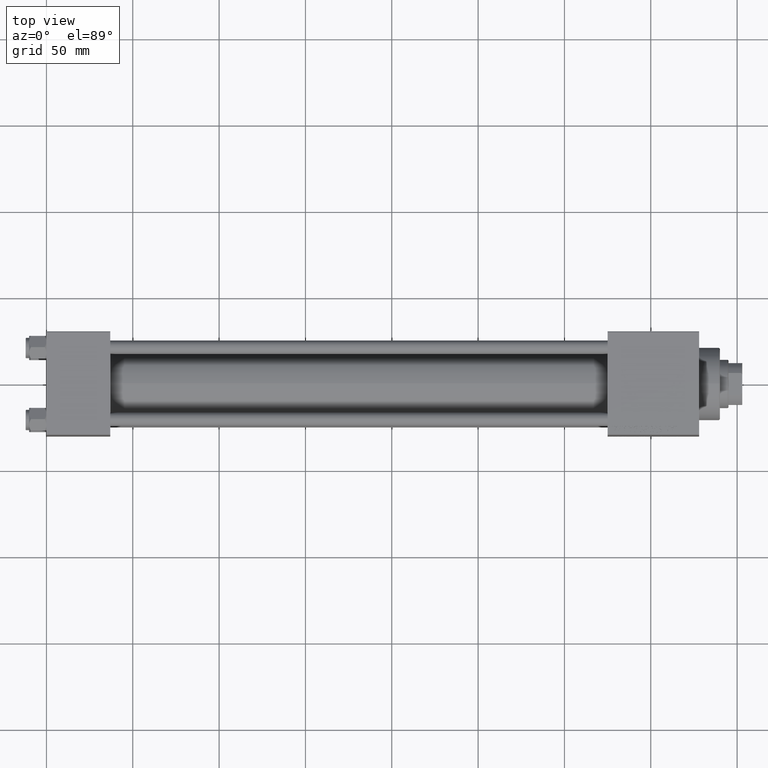
[diagram: clean part render]
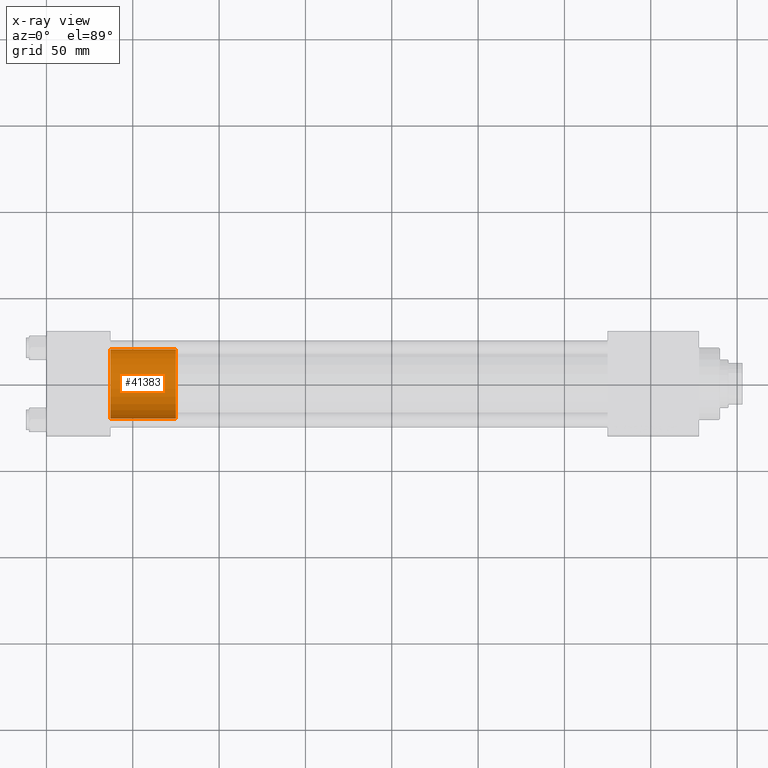
[diagram: x-ray — body ghosted, one internal face saturated and labeled with its STEP entity id]
A machine part, top view, then the same camera in x-ray: the body is ghosted and one INTERNAL B-rep face — a face not visible from any outside direction — is saturated and labeled: STEP entity #41383.
In plain terms, the highlighted cylindrical surface (edge-blend (fillet) strip) has radius 20 mm, axis along (-1, 0, 0).
Its self-contained STEP definition (entity closure, byte-faithful):
#1955 = CARTESIAN_POINT ( 'NONE',  ( -20.00000000000000000, 0.000000000000000000, 38.00000000000000000 ) ) ;
#3616 = CARTESIAN_POINT ( 'NONE',  ( 0.000000000000000000, 0.000000000000000000, 0.000000000000000000 ) ) ;
#5503 = DIRECTION ( 'NONE',  ( -0.000000000000000000, -0.000000000000000000, -1.000000000000000000 ) ) ;
#5640 = AXIS2_PLACEMENT_3D ( 'NONE', #45212, #17258, #44204 ) ;
#6627 = EDGE_CURVE ( 'NONE', #8413, #42660, #38902, .T. ) ;
#7676 = ORIENTED_EDGE ( 'NONE', *, *, #49990, .T. ) ;
#7866 = CARTESIAN_POINT ( 'NONE',  ( -20.00000000000000000, 0.000000000000000000, 0.000000000000000000 ) ) ;
#8036 = AXIS2_PLACEMENT_3D ( 'NONE', #3616, #18823, #8147 ) ;
#8147 = DIRECTION ( 'NONE',  ( 1.000000000000000000, 0.000000000000000000, 0.000000000000000000 ) ) ;
#8413 = VERTEX_POINT ( 'NONE', #47093 ) ;
#11741 = VECTOR ( 'NONE', #5503, 1000.000000000000000 ) ;
#11807 = VECTOR ( 'NONE', #33564, 1000.000000000000000 ) ;
#13893 = VERTEX_POINT ( 'NONE', #7866 ) ;
#15308 = CIRCLE ( 'NONE', #8036, 20.00000000000000000 ) ;
#17258 = DIRECTION ( 'NONE',  ( 0.000000000000000000, 0.000000000000000000, 1.000000000000000000 ) ) ;
#17558 = LINE ( 'NONE', #29501, #11807 ) ;
#17920 = EDGE_LOOP ( 'NONE', ( #19030, #7676, #47900, #43783 ) ) ;
#18823 = DIRECTION ( 'NONE',  ( 0.000000000000000000, 0.000000000000000000, 1.000000000000000000 ) ) ;
#19030 = ORIENTED_EDGE ( 'NONE', *, *, #6627, .F. ) ;
#20435 = CARTESIAN_POINT ( 'NONE',  ( -20.00000000000000000, 0.000000000000000000, 38.00000000000000000 ) ) ;
#20555 = CARTESIAN_POINT ( 'NONE',  ( 0.000000000000000000, 0.000000000000000000, 38.00000000000000000 ) ) ;
#21411 = CARTESIAN_POINT ( 'NONE',  ( 20.00000000000000000, 2.449293598294706513E-15, 0.000000000000000000 ) ) ;
#24870 = FACE_OUTER_BOUND ( 'NONE', #17920, .T. ) ;
#27385 = EDGE_CURVE ( 'NONE', #36353, #13893, #15308, .T. ) ;
#28431 = CYLINDRICAL_SURFACE ( 'NONE', #39944, 20.00000000000000000 ) ;
#29501 = CARTESIAN_POINT ( 'NONE',  ( 20.00000000000000000, 2.449293598294706513E-15, 38.00000000000000000 ) ) ;
#33003 = DIRECTION ( 'NONE',  ( -1.000000000000000000, 0.000000000000000000, 0.000000000000000000 ) ) ;
#33564 = DIRECTION ( 'NONE',  ( -0.000000000000000000, -0.000000000000000000, -1.000000000000000000 ) ) ;
#36353 = VERTEX_POINT ( 'NONE', #21411 ) ;
#38902 = CIRCLE ( 'NONE', #5640, 20.00000000000000000 ) ;
#39944 = AXIS2_PLACEMENT_3D ( 'NONE', #20555, #44190, #33003 ) ;
#41383 = ADVANCED_FACE ( 'NONE', ( #24870 ), #28431, .T. ) ;
#42630 = LINE ( 'NONE', #1955, #11741 ) ;
#42660 = VERTEX_POINT ( 'NONE', #20435 ) ;
#43783 = ORIENTED_EDGE ( 'NONE', *, *, #48477, .F. ) ;
#44190 = DIRECTION ( 'NONE',  ( -0.000000000000000000, -0.000000000000000000, -1.000000000000000000 ) ) ;
#44204 = DIRECTION ( 'NONE',  ( 1.000000000000000000, 0.000000000000000000, 0.000000000000000000 ) ) ;
#45212 = CARTESIAN_POINT ( 'NONE',  ( 0.000000000000000000, 0.000000000000000000, 38.00000000000000000 ) ) ;
#47093 = CARTESIAN_POINT ( 'NONE',  ( 20.00000000000000000, 2.449293598294706513E-15, 38.00000000000000000 ) ) ;
#47900 = ORIENTED_EDGE ( 'NONE', *, *, #27385, .T. ) ;
#48477 = EDGE_CURVE ( 'NONE', #42660, #13893, #42630, .T. ) ;
#49990 = EDGE_CURVE ( 'NONE', #8413, #36353, #17558, .T. ) ;